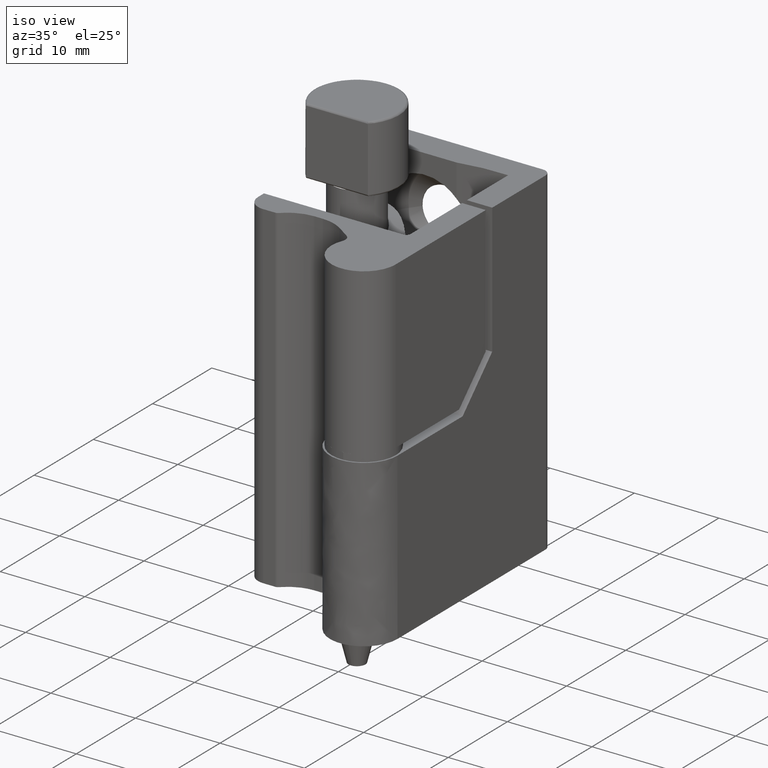
[diagram: clean part render]
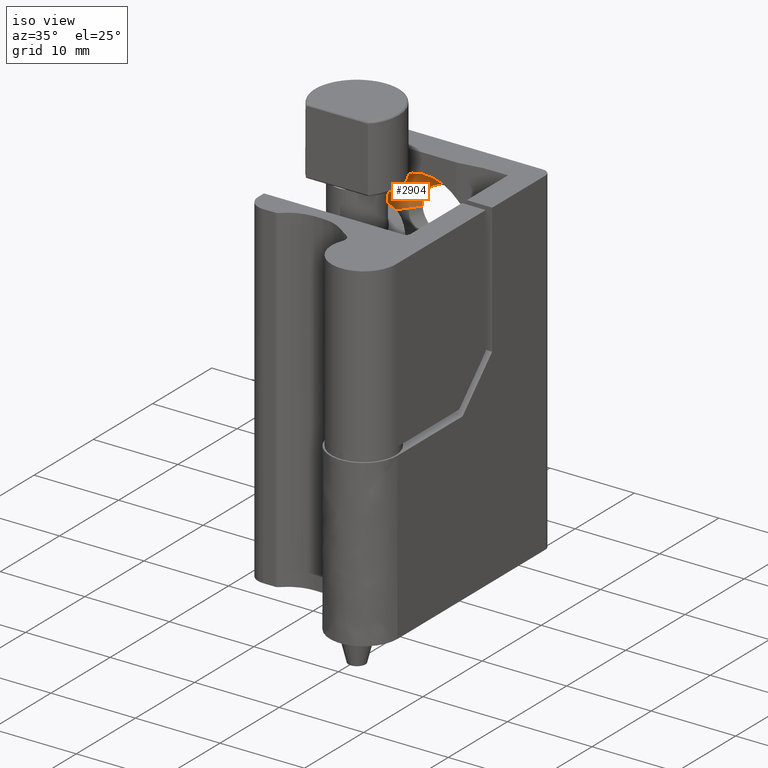
[diagram: same view with one face highlighted and labeled with its STEP entity id]
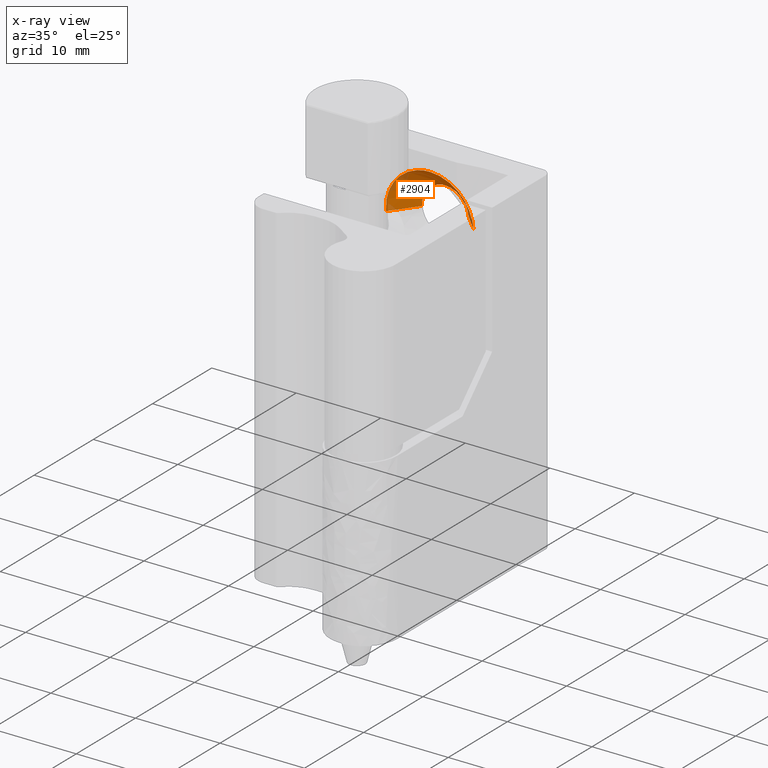
[diagram: x-ray of the same camera — body ghosted, the highlighted face saturated]
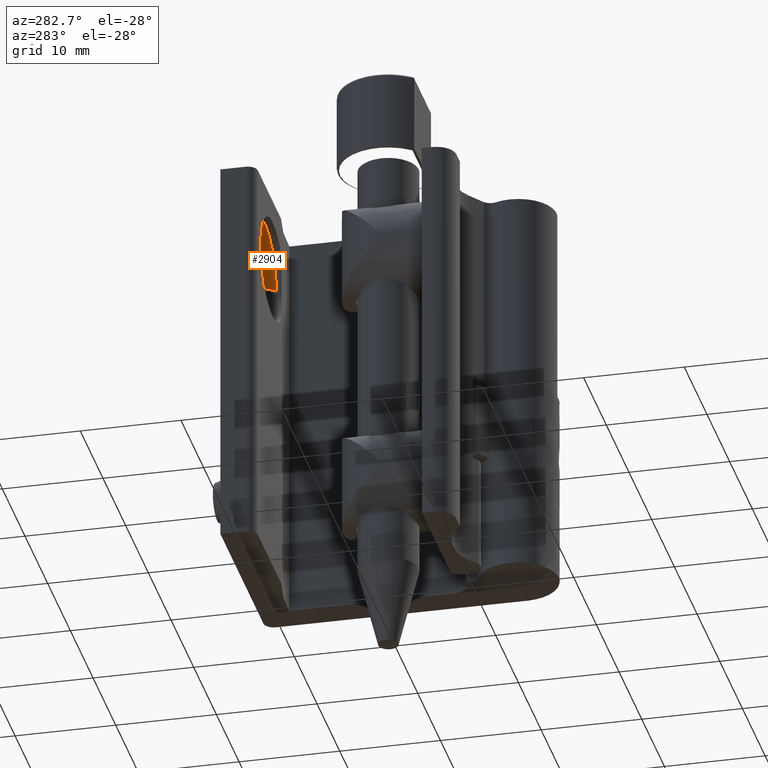
[diagram: same view with one face highlighted and labeled with its STEP entity id]
A machine part, iso view. The second image highlights one B-rep face of the part: STEP entity #2904.
The next image is the same camera in x-ray: the body ghosted, the highlighted face saturated — about 16% of this face is hidden behind the body in this view.
A second angle (auxiliary view) of the same face is appended — the face is thin or edge-on in the first view.
In plain terms, the highlighted face is a freeform B-spline surface patch.
Its self-contained STEP definition (entity closure, byte-faithful):
#2679=CARTESIAN_POINT('',(-11.245006140721809,25.899999999999800,32.332212180237789));
#2680=VERTEX_POINT('',#2679);
#2724=CARTESIAN_POINT('',(-5.758412997224573,25.899999999966589,32.715871913322012));
#2725=VERTEX_POINT('',#2724);
#2741=CARTESIAN_POINT('',(-8.500035486950498,25.899999999999999,35.250201674284149));
#2742=VERTEX_POINT('',#2741);
#2743=CARTESIAN_POINT('',(-8.500035486950498,25.899999999999999,35.250201674284149));
#2744=CARTESIAN_POINT('',(-5.957869075552317,25.899999999999999,35.250201674284149));
#2745=CARTESIAN_POINT('',(-5.758412997224573,25.899999999966589,32.715871913322012));
#2753=(BOUNDED_CURVE()B_SPLINE_CURVE(2,(#2743,#2744,#2745),.UNSPECIFIED.,.F.,.U.)B_SPLINE_CURVE_WITH_KNOTS((3,3),(0.0,0.236331300602383),.UNSPECIFIED.)CURVE()GEOMETRIC_REPRESENTATION_ITEM()RATIONAL_B_SPLINE_CURVE((1.0,0.723120658640794,0.969723356108406))REPRESENTATION_ITEM(''));
#2754=EDGE_CURVE('',#2742,#2725,#2753,.T.);
#2756=CARTESIAN_POINT('',(-11.245006140721806,25.899999999999796,32.332212180237782));
#2757=CARTESIAN_POINT('',(-11.250135617567304,25.899999999999995,32.416078502215619));
#2758=CARTESIAN_POINT('',(-11.250135617567301,25.899999999999999,32.500101543667348));
#2759=CARTESIAN_POINT('',(-11.250135617567299,25.899999999999999,35.250201674284156));
#2760=CARTESIAN_POINT('',(-8.500035486950498,25.899999999999999,35.250201674284149));
#2768=(BOUNDED_CURVE()B_SPLINE_CURVE(2,(#2756,#2757,#2758,#2759,#2760),.UNSPECIFIED.,.F.,.U.)B_SPLINE_CURVE_WITH_KNOTS((3,2,3),(0.739332976895667,0.750000000000000,1.0),.UNSPECIFIED.)CURVE()GEOMETRIC_REPRESENTATION_ITEM()RATIONAL_B_SPLINE_CURVE((0.976072073078869,0.987502805071258,1.0,0.707106781186548,1.0))REPRESENTATION_ITEM(''));
#2769=EDGE_CURVE('',#2680,#2742,#2768,.T.);
#2808=CARTESIAN_POINT('',(-5.819471688379263,25.965000004156028,32.711066489867193));
#2809=CARTESIAN_POINT('',(-6.030436634579104,25.965000004156039,35.391630288438428));
#2810=CARTESIAN_POINT('',(-8.711000433150339,25.965000004156028,35.180665342238584));
#2811=CARTESIAN_POINT('',(-11.391564231721576,25.965000004156039,34.969700396038753));
#2812=CARTESIAN_POINT('',(-11.180599285521730,25.965000004156028,32.289136597467511));
#2813=CARTESIAN_POINT('',(-3.253480193117207,23.233374829499070,32.913014400241771));
#2814=CARTESIAN_POINT('',(-3.666393049691628,23.233374829499066,38.159569694075067));
#2815=CARTESIAN_POINT('',(-8.912948343524919,23.233374829499070,37.746656837500637));
#2816=CARTESIAN_POINT('',(-14.159503637358215,23.233374829499066,37.333743980926215));
#2817=CARTESIAN_POINT('',(-13.746590780783791,23.233374829499070,32.087188687092933));
#2825=(BOUNDED_SURFACE()B_SPLINE_SURFACE(2,1,((#2808,#2813),(#2809,#2814),(#2810,#2815),(#2811,#2816),(#2812,#2817)),.UNSPECIFIED.,.F.,.F.,.U.)B_SPLINE_SURFACE_WITH_KNOTS((3,2,3),(2,2),(0.0,8.719657226976729,17.439314453953461),(0.0,3.753248114244717),.UNSPECIFIED.)GEOMETRIC_REPRESENTATION_ITEM()RATIONAL_B_SPLINE_SURFACE(((1.0,1.0),(0.707106781186548,0.707106781186548),(1.0,1.0),(0.707106781186548,0.707106781186548),(1.0,1.0)))REPRESENTATION_ITEM('')SURFACE());
#2826=ORIENTED_EDGE('',*,*,#2754,.T.);
#2827=CARTESIAN_POINT('',(-3.316065351526739,23.299999833727441,32.908088841685128));
#2828=VERTEX_POINT('',#2827);
#2829=CARTESIAN_POINT('',(-5.758412997224573,25.899999999966589,32.715871913322012));
#2830=CARTESIAN_POINT('',(-3.316065351526739,23.299999833727441,32.908088841685128));
#2831=QUASI_UNIFORM_CURVE('',1,(#2829,#2830),.UNSPECIFIED.,.F.,.U.);
#2832=EDGE_CURVE('',#2725,#2828,#2831,.T.);
#2833=ORIENTED_EDGE('',*,*,#2832,.T.);
#2834=CARTESIAN_POINT('',(-8.500035486950498,23.299999833758999,37.700101543667337));
#2835=VERTEX_POINT('',#2834);
#2836=CARTESIAN_POINT('',(-8.500035486950498,23.299999833758999,37.700101543667337));
#2837=CARTESIAN_POINT('',(-3.693204930756880,23.299999833759006,37.700101543667358));
#2838=CARTESIAN_POINT('',(-3.316065351526738,23.299999833727433,32.908088841685128));
#2846=(BOUNDED_CURVE()B_SPLINE_CURVE(2,(#2836,#2837,#2838),.UNSPECIFIED.,.F.,.U.)B_SPLINE_CURVE_WITH_KNOTS((3,3),(0.0,0.236331300617513),.UNSPECIFIED.)CURVE()GEOMETRIC_REPRESENTATION_ITEM()RATIONAL_B_SPLINE_CURVE((1.0,0.723120658623068,0.969723356139981))REPRESENTATION_ITEM(''));
#2847=EDGE_CURVE('',#2835,#2828,#2846,.T.);
#2848=ORIENTED_EDGE('',*,*,#2847,.F.);
#2849=CARTESIAN_POINT('',(-12.089097902110980,23.299999833758019,36.262897177246430));
#2850=VERTEX_POINT('',#2849);
#2851=CARTESIAN_POINT('',(-12.089097902110982,23.299999833758012,36.262897177246430));
#2852=CARTESIAN_POINT('',(-10.582323353621259,23.299999833758999,37.700101543667358));
#2853=CARTESIAN_POINT('',(-8.500035486950498,23.299999833758999,37.700101543667337));
#2861=(BOUNDED_CURVE()B_SPLINE_CURVE(2,(#2851,#2852,#2853),.UNSPECIFIED.,.F.,.U.)B_SPLINE_CURVE_WITH_KNOTS((3,3),(0.878565196965377,1.0),.UNSPECIFIED.)CURVE()GEOMETRIC_REPRESENTATION_ITEM()RATIONAL_B_SPLINE_CURVE((0.853672522022351,0.857730278652847,1.0))REPRESENTATION_ITEM(''));
#2862=EDGE_CURVE('',#2850,#2835,#2861,.T.);
#2863=ORIENTED_EDGE('',*,*,#2862,.F.);
#2864=CARTESIAN_POINT('',(-13.685142205355310,23.299999833758999,32.106822611161022));
#2865=VERTEX_POINT('',#2864);
#2866=CARTESIAN_POINT('',(-13.685142205355309,23.299999833759003,32.106822611161022));
#2867=CARTESIAN_POINT('',(-13.700035486950497,23.299999833758996,32.303180076737114));
#2868=CARTESIAN_POINT('',(-13.700035486950499,23.299999833758999,32.500101543667348));
#2869=CARTESIAN_POINT('',(-13.700035486950505,23.299999833758999,34.726339147856393));
#2870=CARTESIAN_POINT('',(-12.089097902110982,23.299999833758012,36.262897177246430));
#2878=(BOUNDED_CURVE()B_SPLINE_CURVE(2,(#2866,#2867,#2868,#2869,#2870),.UNSPECIFIED.,.F.,.U.)B_SPLINE_CURVE_WITH_KNOTS((3,2,3),(0.736817880912086,0.750000000000000,0.878565196965377),.UNSPECIFIED.)CURVE()GEOMETRIC_REPRESENTATION_ITEM()RATIONAL_B_SPLINE_CURVE((0.970741031150629,0.984556186838235,1.0,0.849376502533700,0.853672522022351))REPRESENTATION_ITEM(''));
#2879=EDGE_CURVE('',#2865,#2850,#2878,.T.);
#2880=ORIENTED_EDGE('',*,*,#2879,.F.);
#2881=CARTESIAN_POINT('',(-13.684005622368501,23.299999833743168,32.092114245765309));
#2882=VERTEX_POINT('',#2881);
#2883=CARTESIAN_POINT('',(-13.684005622368497,23.299999833743165,32.092114245765309));
#2884=CARTESIAN_POINT('',(-13.684584345636186,23.299999833758999,32.099467622276045));
#2885=CARTESIAN_POINT('',(-13.685142205355303,23.299999833758999,32.106822611161029));
#2893=(BOUNDED_CURVE()B_SPLINE_CURVE(2,(#2883,#2884,#2885),.UNSPECIFIED.,.F.,.U.)B_SPLINE_CURVE_WITH_KNOTS((3,3),(0.736331300625090,0.736817880912086),.UNSPECIFIED.)CURVE()GEOMETRIC_REPRESENTATION_ITEM()RATIONAL_B_SPLINE_CURVE((0.969723356155795,0.970231084125075,0.970741031150628))REPRESENTATION_ITEM(''));
#2894=EDGE_CURVE('',#2882,#2865,#2893,.T.);
#2895=ORIENTED_EDGE('',*,*,#2894,.F.);
#2896=CARTESIAN_POINT('',(-11.245006140721809,25.899999999999800,32.332212180237789));
#2897=CARTESIAN_POINT('',(-13.684005622368501,23.299999833743168,32.092114245765309));
#2898=QUASI_UNIFORM_CURVE('',1,(#2896,#2897),.UNSPECIFIED.,.F.,.U.);
#2899=EDGE_CURVE('',#2680,#2882,#2898,.T.);
#2900=ORIENTED_EDGE('',*,*,#2899,.F.);
#2901=ORIENTED_EDGE('',*,*,#2769,.T.);
#2902=EDGE_LOOP('',(#2826,#2833,#2848,#2863,#2880,#2895,#2900,#2901));
#2903=FACE_OUTER_BOUND('',#2902,.T.);
#2904=ADVANCED_FACE('',(#2903),#2825,.F.);